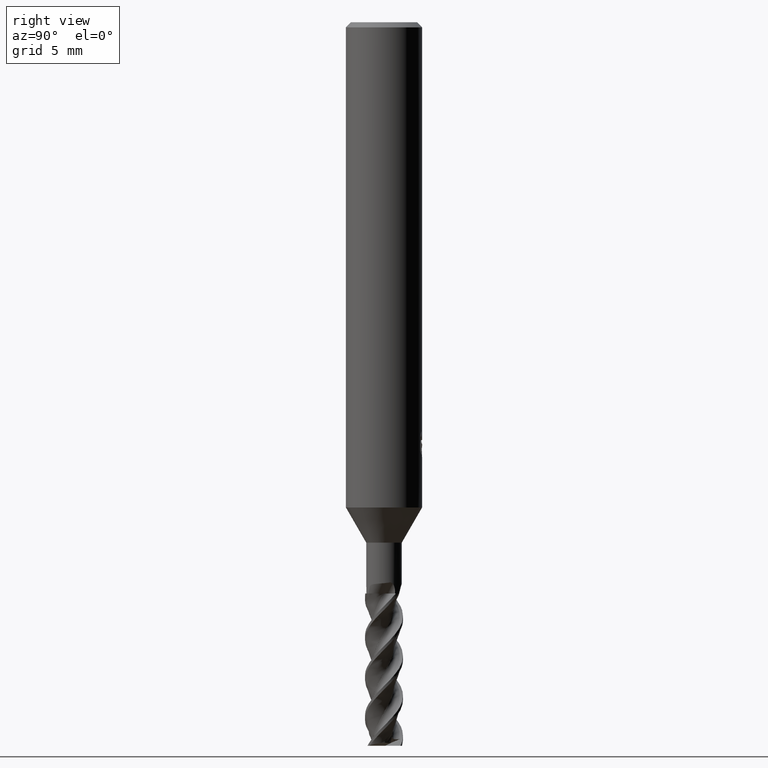
[diagram: clean part render]
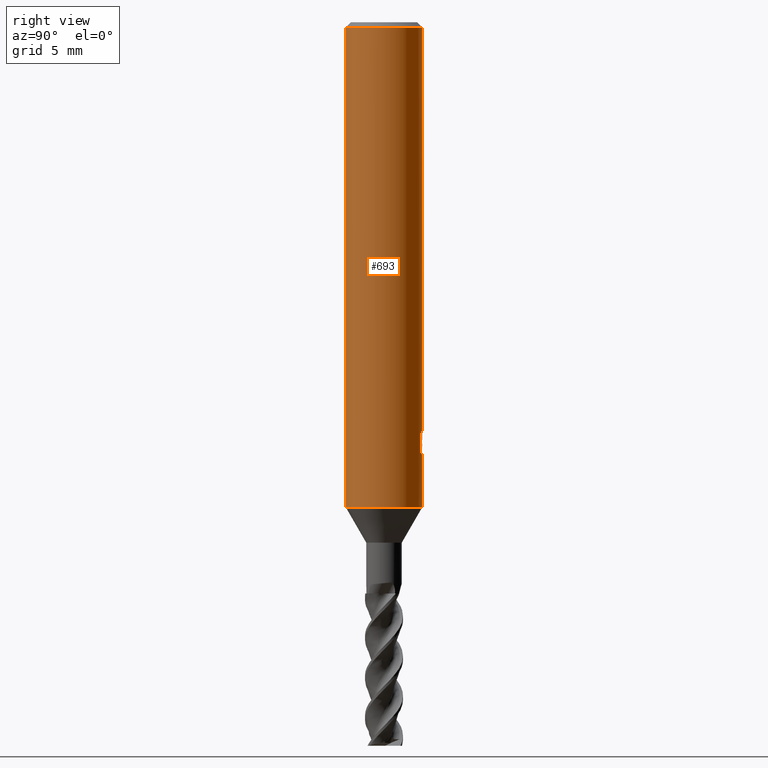
[diagram: same view with one face highlighted and labeled with its STEP entity id]
A machine part, right view. The second image highlights one B-rep face of the part: STEP entity #693.
In plain terms, the highlighted cylindrical surface (partial cylindrical patch) has radius 3 mm, axis along (-0, -0, 1).
Its self-contained STEP definition (entity closure, byte-faithful):
#483=VERTEX_POINT('',#1330);
#513=VERTEX_POINT('',#1361);
#541=EDGE_CURVE('',#923,#785,#1389,.T.);
#551=VERTEX_POINT('',#1400);
#607=VERTEX_POINT('',#1464);
#613=EDGE_CURVE('',#1093,#1227,#1470,.T.);
#633=EDGE_CURVE('',#483,#551,#1494,.T.);
#693=ADVANCED_FACE('',(#1557,#1558),#1559,.T.);
#785=VERTEX_POINT('',#1665);
#791=EDGE_CURVE('',#513,#965,#1671,.T.);
#875=EDGE_CURVE('',#607,#1151,#1762,.T.);
#879=EDGE_CURVE('',#1227,#947,#1766,.T.);
#887=VERTEX_POINT('',#1774);
#917=EDGE_CURVE('',#923,#513,#1805,.T.);
#921=EDGE_CURVE('',#965,#785,#1809,.T.);
#923=VERTEX_POINT('',#1811);
#947=VERTEX_POINT('',#1839);
#957=VERTEX_POINT('',#1850);
#959=EDGE_CURVE('',#1151,#1241,#1852,.T.);
#965=VERTEX_POINT('',#1859);
#1009=EDGE_CURVE('',#887,#1093,#1910,.T.);
#1075=EDGE_CURVE('',#551,#957,#1980,.T.);
#1083=EDGE_CURVE('',#1241,#1181,#1989,.T.);
#1093=VERTEX_POINT('',#2001);
#1151=VERTEX_POINT('',#2064);
#1181=VERTEX_POINT('',#2096);
#1227=VERTEX_POINT('',#2144);
#1241=VERTEX_POINT('',#2159);
#1243=EDGE_CURVE('',#957,#607,#2161,.T.);
#1251=EDGE_CURVE('',#1181,#887,#2170,.T.);
#1253=EDGE_CURVE('',#947,#483,#2172,.T.);
#1330=CARTESIAN_POINT('',(0.891458520360562,2.86448978117859,-32.5724599021333));
#1361=CARTESIAN_POINT('',(0.0,3.0,-38.229));
#1389=CIRCLE('',#2745,3.0);
#1400=CARTESIAN_POINT('',(0.532945602569763,2.95228199613478,-32.2291001845789));
#1464=CARTESIAN_POINT('',(0.017320435906989,2.99995,-33.2311258377872));
#1470=LINE('',#3695,#3696);
#1494=B_SPLINE_CURVE_WITH_KNOTS('',3,(#3725,#3726,#3727,#3728,#3729,#3730),.UNSPECIFIED.,.F.,.F.,(4,2,4),(0.413155597726238,0.826311195452475,1.23888540984235),.UNSPECIFIED.);
#1557=FACE_OUTER_BOUND('',#4062,.T.);
#1558=FACE_BOUND('',#4063,.T.);
#1559=CYLINDRICAL_SURFACE('',#4064,3.0);
#1665=CARTESIAN_POINT('',(3.67381906146713E-016,-3.0,-0.399999999999999));
#1671=CIRCLE('',#5576,3.0);
#1762=B_SPLINE_CURVE_WITH_KNOTS('',3,(#5865,#5866,#5867,#5868,#5869,#5870,#5871,#5872,#5873,#5874,#5875,#5876,#5877,#5878),.UNSPECIFIED.,.F.,.F.,(4,2,2,2,2,2,4),(2.091097645352,2.38959558480883,2.68809352426566,2.98659146372249,3.28432857408576,3.58206568444903,3.88185771191666),.UNSPECIFIED.);
#1766=B_SPLINE_CURVE_WITH_KNOTS('',3,(#5891,#5892,#5893,#5894,#5895,#5896),.UNSPECIFIED.,.F.,.F.,(4,2,4),(5.37052262242642,5.78309682294637,6.19625240627158),.UNSPECIFIED.);
#1774=CARTESIAN_POINT('',(0.193398861644812,2.99375965640438,-34.228955271205));
#1805=LINE('',#6101,#6102);
#1809=LINE('',#6117,#6118);
#1811=CARTESIAN_POINT('',(0.0,3.0,-0.399999999999999));
#1839=CARTESIAN_POINT('',(0.891458520360562,2.86448978117859,-33.7558516898096));
#1850=CARTESIAN_POINT('',(0.0173204359069655,2.99995,-32.9147978605752));
#1852=ELLIPSE('',#6465,3.34478529612858,3.0);
#1859=CARTESIAN_POINT('',(3.67381906146713E-016,-3.0,-38.229));
#1910=ELLIPSE('',#7032,9.14398372010932,3.0);
#1980=B_SPLINE_CURVE_WITH_KNOTS('',3,(#7600,#7601,#7602,#7603,#7604,#7605,#7606,#7607,#7608,#7609,#7610,#7611,#7612,#7613,#7614,#7615,#7616,#7617,#7618,#7619,#7620,#7621,#7622,#7623,#7624,#7625,#7626),.UNSPECIFIED.,.F.,.F.,(4,2,3,2,2,2,2,2,2,2,2,2,4),(-0.361797878080097,-0.180898939040048,0.0,0.180898939040045,0.36179787808009,0.54316499674529,0.724532115410489,0.905110773244761,1.08568943107903,1.26650066090355,1.44731189072806,1.62812312055258,1.80893435037709),.UNSPECIFIED.);
#1989=LINE('',#7636,#7637);
#2001=CARTESIAN_POINT('',(0.582364149245686,2.94293255064967,-33.1090141090597));
#2064=CARTESIAN_POINT('',(0.382078323112377,2.97556988743461,-33.1826374206519));
#2096=CARTESIAN_POINT('',(0.0173204359069983,2.99995,-34.2493099672144));
#2144=CARTESIAN_POINT('',(0.582364149245685,2.94293255064967,-34.0682261365542));
#2159=CARTESIAN_POINT('',(0.017320435906985,2.99995,-33.3624691290817));
#2161=LINE('',#9420,#9421);
#2170=B_SPLINE_CURVE_WITH_KNOTS('',3,(#9433,#9434,#9435,#9436,#9437,#9438,#9439,#9440,#9441,#9442),.UNSPECIFIED.,.F.,.F.,(4,2,2,2,4),(3.71798730591323,4.13127027719931,4.54460961578536,4.9579489543714,5.37052319276389),.UNSPECIFIED.);
#2172=LINE('',#9445,#9446);
#2745=AXIS2_PLACEMENT_3D('',#9534,#9535,#9536);
#3695=CARTESIAN_POINT('',(0.582364149245686,2.94293255064967,-33.588620122807));
#3696=VECTOR('',#9627,1.0);
#3725=CARTESIAN_POINT('',(0.983470332191283,2.8342170181021,-32.7468923016557));
#3726=CARTESIAN_POINT('',(0.927866853050187,2.8535113497582,-32.613317674708));
#3727=CARTESIAN_POINT('',(0.844490785540526,2.88038670496079,-32.4920171472775));
#3728=CARTESIAN_POINT('',(0.65297577716901,2.92974185755459,-32.3005884959489));
#3729=CARTESIAN_POINT('',(0.531685216531229,2.95558304183374,-32.2172417116512));
#3730=CARTESIAN_POINT('',(0.398116995441561,2.97346647163552,-32.1616780771524));
#4062=EDGE_LOOP('',(#9722,#9723,#9724,#9725));
#4063=EDGE_LOOP('',(#9726,#9727,#9728,#9729,#9730,#9731,#9732,#9733,#9734,#9735,#9736));
#4064=AXIS2_PLACEMENT_3D('',#9737,#9738,#9739);
#5576=AXIS2_PLACEMENT_3D('',#9888,#9889,#9890);
#5865=CARTESIAN_POINT('',(-0.629727328037686,2.93316271153213,-32.1440913557644));
#5866=CARTESIAN_POINT('',(-0.670089755997728,2.92449721450026,-32.2412639601135));
#5867=CARTESIAN_POINT('',(-0.690061178540054,2.91955742705498,-32.3471316354559));
#5868=CARTESIAN_POINT('',(-0.690061178540054,2.91955742705498,-32.5461302617605));
#5869=CARTESIAN_POINT('',(-0.670089755997728,2.92449721450026,-32.6519979371029));
#5870=CARTESIAN_POINT('',(-0.589364900077664,2.94182820856402,-32.8463431458012));
#5871=CARTESIAN_POINT('',(-0.528629969212499,2.95390696563364,-32.9348560999866));
#5872=CARTESIAN_POINT('',(-0.388825924618277,2.97553438372319,-33.0744507471901));
#5873=CARTESIAN_POINT('',(-0.300374998568301,2.98650953771095,-33.1350152917628));
#5874=CARTESIAN_POINT('',(-0.106252469502455,2.99969577970094,-33.2154637231012));
#5875=CARTESIAN_POINT('',(-0.000555188223129263,3.0016411180253,-33.2353289843056));
#5876=CARTESIAN_POINT('',(0.198513504569518,2.99509240733468,-33.2353289843056));
#5877=CARTESIAN_POINT('',(0.304528894401634,2.98611319488251,-33.215217470731));
#5878=CARTESIAN_POINT('',(0.401676121348868,2.97298777218106,-33.1747873850085));
#5891=CARTESIAN_POINT('',(0.398117010340557,2.97346646964069,-34.1666335040356));
#5892=CARTESIAN_POINT('',(0.531685226880308,2.95558303976684,-34.1110698713996));
#5893=CARTESIAN_POINT('',(0.652975783373712,2.92974185605895,-34.0277230899086));
#5894=CARTESIAN_POINT('',(0.844490785097963,2.88038670497133,-33.8362944450911));
#5895=CARTESIAN_POINT('',(0.927866849687464,2.85351135080826,-33.7149939218539));
#5896=CARTESIAN_POINT('',(0.983470326877133,2.83421701994611,-33.5814192995311));
#6101=CARTESIAN_POINT('',(-3.67381906146713E-016,3.0,-19.3145));
#6102=VECTOR('',#10010,1.0);
#6117=CARTESIAN_POINT('',(3.67381906146713E-016,-3.0,-19.3145));
#6118=VECTOR('',#10011,1.0);
#6465=AXIS2_PLACEMENT_3D('',#10053,#10054,#10055);
#7032=AXIS2_PLACEMENT_3D('',#10140,#10141,#10142);
#7600=CARTESIAN_POINT('',(0.443451175650265,2.96704416125113,-32.1048764058061));
#7601=CARTESIAN_POINT('',(0.485825230520439,2.96071098134951,-32.1473072631593));
#7602=CARTESIAN_POINT('',(0.522628634598443,2.95423041401875,-32.2010565977036));
#7603=CARTESIAN_POINT('',(0.57151547907337,2.94516350896329,-32.3190093998545));
#7604=CARTESIAN_POINT('',(0.58359092842081,2.94268952291351,-32.3832247886018));
#7605=CARTESIAN_POINT('',(0.58359092842081,2.94268952291351,-32.4435244349484));
#7606=CARTESIAN_POINT('',(0.58359092842081,2.94268952291351,-32.5038240812951));
#7607=CARTESIAN_POINT('',(0.571515479073374,2.94516350896329,-32.5680394700423));
#7608=CARTESIAN_POINT('',(0.522628634598449,2.95423041401874,-32.6859922721932));
#7609=CARTESIAN_POINT('',(0.485825230520438,2.96071098134951,-32.7397416067375));
#7610=CARTESIAN_POINT('',(0.400967453640912,2.97339373188344,-32.8247131355921));
#7611=CARTESIAN_POINT('',(0.347160591378603,2.98043595390805,-32.8616186343397));
#7612=CARTESIAN_POINT('',(0.229067490754345,2.99183004798448,-32.9106491335629));
#7613=CARTESIAN_POINT('',(0.164768311964613,2.99608182394725,-32.9227661750437));
#7614=CARTESIAN_POINT('',(0.0441927259273236,3.00027835150232,-32.9227661750437));
#7615=CARTESIAN_POINT('',(-0.019984914707439,3.00051422459916,-32.9107432311485));
#7616=CARTESIAN_POINT('',(-0.138011899975601,2.99740516520178,-32.8618705536194));
#7617=CARTESIAN_POINT('',(-0.191865153226538,2.99416206152009,-32.8250238345305));
#7618=CARTESIAN_POINT('',(-0.276951356845972,2.9874941541864,-32.7400104084073));
#7619=CARTESIAN_POINT('',(-0.31385751762486,2.98363884435361,-32.6861404765947));
#7620=CARTESIAN_POINT('',(-0.362829872721118,2.97808021777493,-32.56803592618));
#7621=CARTESIAN_POINT('',(-0.374892551769671,2.97648376018208,-32.5037948448899));
#7622=CARTESIAN_POINT('',(-0.374892551769671,2.97648376018208,-32.3832540250069));
#7623=CARTESIAN_POINT('',(-0.362829872721118,2.97808021777493,-32.3190129437168));
#7624=CARTESIAN_POINT('',(-0.31385751762486,2.98363884435361,-32.2009083933022));
#7625=CARTESIAN_POINT('',(-0.276951356845972,2.9874941541864,-32.1470384614896));
#7626=CARTESIAN_POINT('',(-0.234380876478644,2.99083025341478,-32.1045043932883));
#7636=CARTESIAN_POINT('',(0.017320435906985,2.99995,-33.2395073647412));
#7637=VECTOR('',#10212,1.0);
#9420=CARTESIAN_POINT('',(0.017320435906985,2.99995,-33.2395073647412));
#9421=VECTOR('',#10372,1.0);
#9433=CARTESIAN_POINT('',(-1.02131077257619,2.8208020678204,-33.5813603909889));
#9434=CARTESIAN_POINT('',(-0.965748326062893,2.84091920915678,-33.714858656383));
#9435=CARTESIAN_POINT('',(-0.882474008253194,2.86898278727422,-33.8360393018291));
#9436=CARTESIAN_POINT('',(-0.691181971660376,2.92097462682348,-34.0274209134462));
#9437=CARTESIAN_POINT('',(-0.569939118101215,2.94845792845378,-34.1108242986056));
#9438=CARTESIAN_POINT('',(-0.302738780934602,2.98773894197887,-34.2221051738375));
#9439=CARTESIAN_POINT('',(-0.156684840798735,2.99907204453492,-34.2499145449035));
#9440=CARTESIAN_POINT('',(0.118614216879022,3.00080717863586,-34.2499145449035));
#9441=CARTESIAN_POINT('',(0.264548965222023,2.99134988491468,-34.2221974310104));
#9442=CARTESIAN_POINT('',(0.398117192990064,2.97346644518577,-34.1666337934181));
#9445=CARTESIAN_POINT('',(0.891458520360562,2.86448978117859,-33.1641557959714));
#9446=VECTOR('',#10382,1.0);
#9534=CARTESIAN_POINT('',(0.0,0.0,-0.399999999999999));
#9535=DIRECTION('',(0.0,0.0,-1.0));
#9536=DIRECTION('',(0.0,1.0,0.0));
#9627=DIRECTION('',(0.0,0.0,-1.0));
#9722=ORIENTED_EDGE('',*,*,#917,.F.);
#9723=ORIENTED_EDGE('',*,*,#541,.T.);
#9724=ORIENTED_EDGE('',*,*,#921,.F.);
#9725=ORIENTED_EDGE('',*,*,#791,.F.);
#9726=ORIENTED_EDGE('',*,*,#959,.T.);
#9727=ORIENTED_EDGE('',*,*,#1083,.T.);
#9728=ORIENTED_EDGE('',*,*,#1251,.T.);
#9729=ORIENTED_EDGE('',*,*,#1009,.T.);
#9730=ORIENTED_EDGE('',*,*,#613,.T.);
#9731=ORIENTED_EDGE('',*,*,#879,.T.);
#9732=ORIENTED_EDGE('',*,*,#1253,.T.);
#9733=ORIENTED_EDGE('',*,*,#633,.T.);
#9734=ORIENTED_EDGE('',*,*,#1075,.T.);
#9735=ORIENTED_EDGE('',*,*,#1243,.T.);
#9736=ORIENTED_EDGE('',*,*,#875,.T.);
#9737=CARTESIAN_POINT('',(0.0,0.0,-19.3145));
#9738=DIRECTION('',(-0.0,-0.0,1.0));
#9739=DIRECTION('',(0.0,1.0,0.0));
#9888=CARTESIAN_POINT('',(0.0,0.0,-38.229));
#9889=DIRECTION('',(0.0,0.0,-1.0));
#9890=DIRECTION('',(0.0,1.0,0.0));
#10010=DIRECTION('',(0.0,0.0,-1.0));
#10011=DIRECTION('',(-0.0,-0.0,1.0));
#10053=CARTESIAN_POINT('',(0.0,0.0,-33.3710083922181));
#10054=DIRECTION('',(-0.442195774284071,0.0,0.896918556617774));
#10055=DIRECTION('',(0.896918556617774,-0.0,0.442195774284071));
#10140=CARTESIAN_POINT('',(0.0,0.0,-34.7858053366801));
#10141=DIRECTION('',(0.944648353914092,0.0,-0.328084573619969));
#10142=DIRECTION('',(0.328084573619969,-0.0,0.944648353914092));
#10212=DIRECTION('',(0.0,0.0,-1.0));
#10372=DIRECTION('',(0.0,0.0,-1.0));
#10382=DIRECTION('',(-0.0,-0.0,1.0));